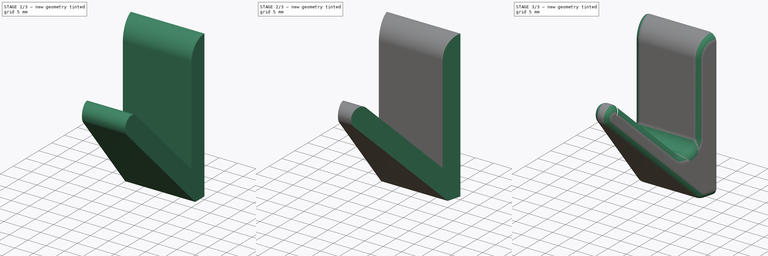
[diagram: build sequence overview — one tinted view per stage of 3, left to right]
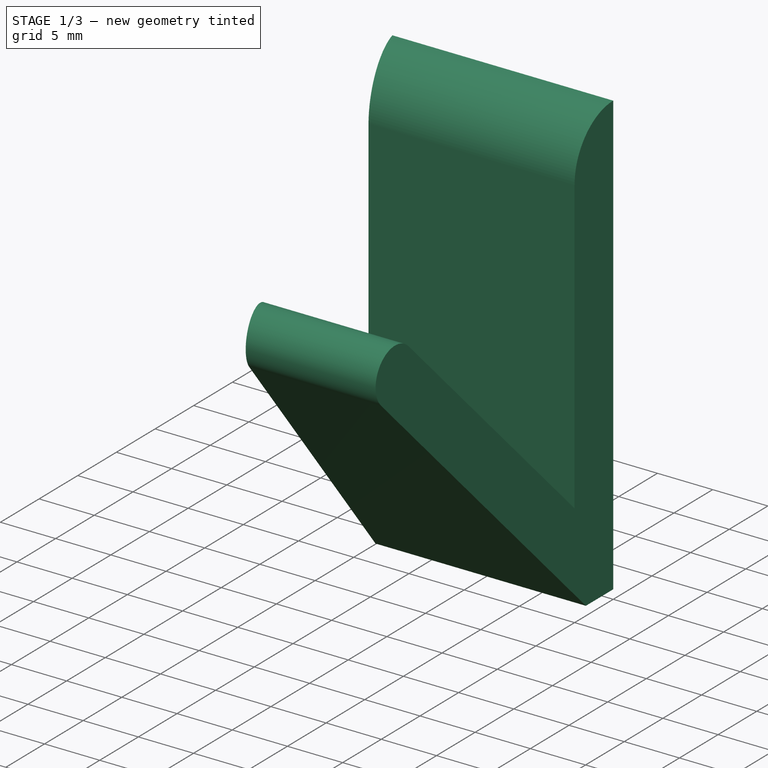
[diagram: stage 1 of 3 — iso view after this stage's code; geometry added in this stage tinted green]
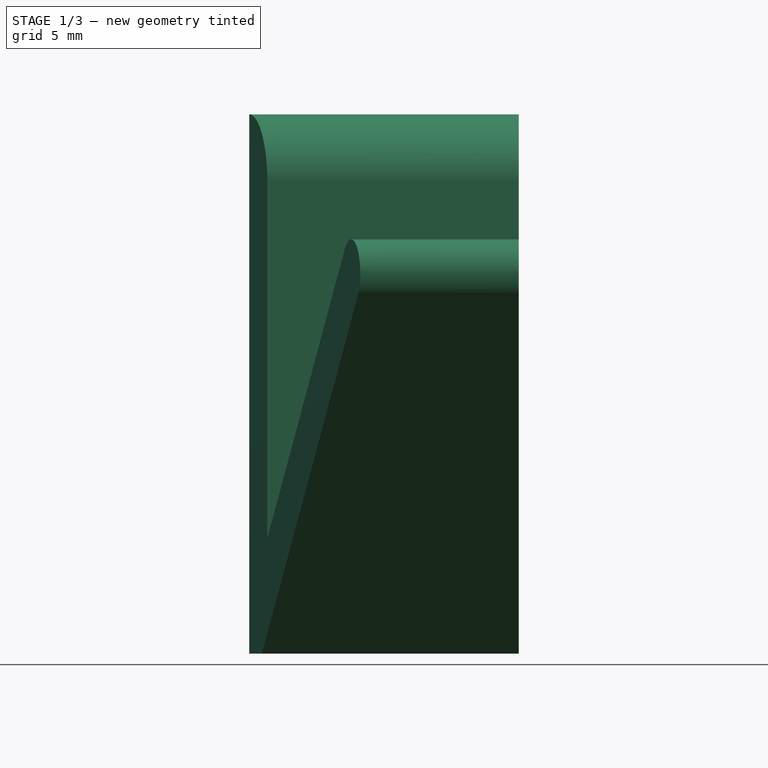
[diagram: stage 1 of 3 — front view after this stage's code; geometry added in this stage tinted green]
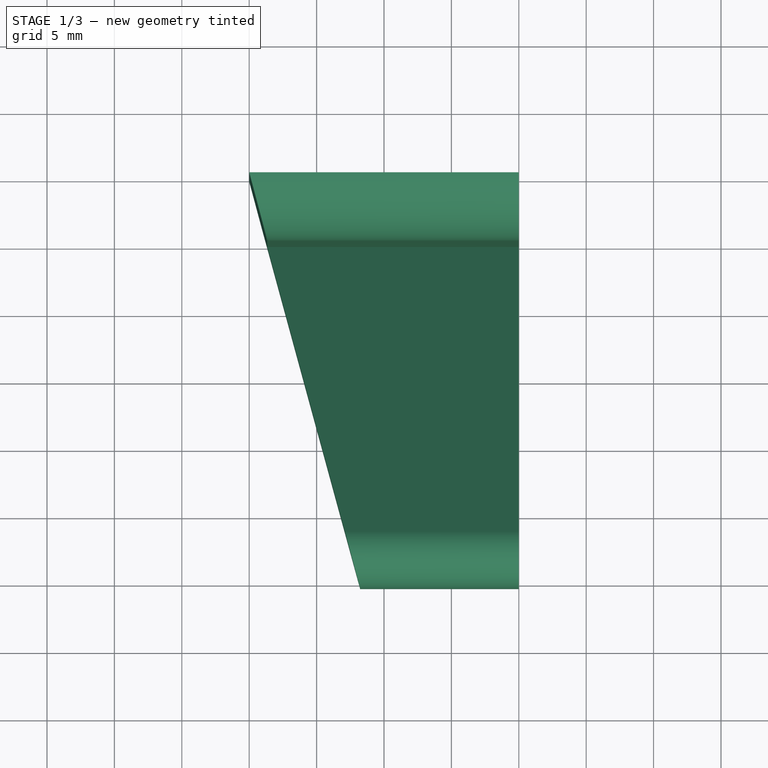
[diagram: stage 1 of 3 — top view after this stage's code; geometry added in this stage tinted green]
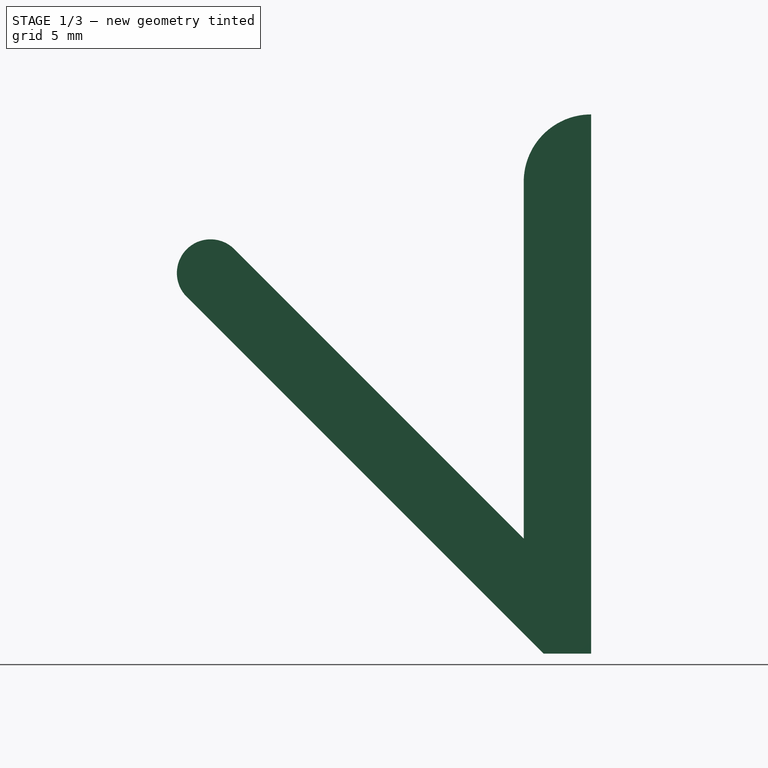
[diagram: stage 1 of 3 — right view after this stage's code; geometry added in this stage tinted green]
FCSTD DOCUMENT  (FreeCAD 1.0R38806 (Git))
Label: minihook
License: All rights reserved
LicenseURL: http://en.wikipedia.org/wiki/All_rights_reserved
objects: Sketcher::SketchObject×3, PartDesign::Pocket×2, PartDesign::Fillet×2, Spreadsheet::Sheet×1, PartDesign::Pad×1, PartDesign::Body×1
note: 22 computed .brp shape members not serialized (recipe doc carries the construction recipe); baked Part::Feature solids carry a one-line shape summary decoded from their .brp

FEATURE [Spreadsheet::Sheet] Spreadsheet
  cells = A1='hook base width; B1(hookBaseWidth)=20; A2='hook base height; B2(hookBaseHeight)=40; A3='hook base thickness; B3(hookBaseThickness)=5; A4='hook depth; B4(hookDepth)=30; A5='hook width angle; B5(hookWidthAngle)=30; A6='hook angle; B6(hookAngle)=45; A7='Hook width; B7(hookWidth)=5; A8='Fillet size; B8(fillet)=3; A9='edge fillet size; B9(edgeFillet)=1.5
FEATURE [Sketcher::SketchObject] Sketch001
  ArcFitTolerance = 0
  AttachmentSupport = -> [XY_Plane]
  FullyConstrained = true
  MakeInternals = false
  MapMode = 5
  expr: Constraints[17] = Spreadsheet.hookWidthAngle / 2
  expr: Constraints[2] = Spreadsheet.hookBaseWidth
  sketch-geometry (8):
    g0: LineSegment [constr] StartX=0 StartY=0 StartZ=0 EndX=20 EndY=0 EndZ=0
    g1: LineSegment [constr] StartX=0 StartY=0 StartZ=0 EndX=0 EndY=-37.3205 EndZ=0
    g2: LineSegment [constr] StartX=20 StartY=0 StartZ=0 EndX=20 EndY=-37.3205 EndZ=0
    g3: LineSegment [constr] StartX=0 StartY=-37.3205 StartZ=0 EndX=20 EndY=-37.3205 EndZ=0
    g4: GeomPoint [constr] X=10 Y=-37.3205 Z=0
    g5: LineSegment StartX=10 StartY=-37.3205 StartZ=0 EndX=0 EndY=-37.3205 EndZ=0
    g6: LineSegment StartX=0 StartY=-37.3205 StartZ=0 EndX=0 EndY=0 EndZ=0
    g7: LineSegment StartX=0 StartY=0 StartZ=0 EndX=10 EndY=-37.3205 EndZ=0
  constraints (18):
    c: Horizontal(g0)
    c: Coincident(g0,g-1)
    c: Distance(g0) = 20
    c: Coincident(g1,g0)
    c: Coincident(g2,g0)
    c: Vertical(g2)
    c: Vertical(g1)
    c: Coincident(g3,g1)
    c: Coincident(g3,g2)
    c: Horizontal(g3)
    c: Symmetric(g1,g2,g4)
    c: Coincident(g5,g4)
    c: Coincident(g5,g1)
    c: Coincident(g5,g6)
    c: Coincident(g6,g0)
    c: Coincident(g6,g7)
    c: Coincident(g7,g5)
    c: Angle(g6,g7) = 0.261799
FEATURE [Sketcher::SketchObject] Sketch002
  ArcFitTolerance = 0
  AttachmentSupport = -> [XY_Plane]
  FullyConstrained = true
  MakeInternals = false
  MapMode = 5
  expr: Constraints[15] = Spreadsheet.hookWidthAngle / 2
  expr: Constraints[16] = Spreadsheet.hookBaseWidth
  sketch-geometry (7):
    g0: LineSegment [constr] StartX=0 StartY=0 StartZ=0 EndX=20 EndY=0 EndZ=0
    g1: LineSegment [constr] StartX=20 StartY=0 StartZ=0 EndX=20 EndY=-37.3205 EndZ=0
    g2: LineSegment [constr] StartX=20 StartY=-37.3205 StartZ=0 EndX=0 EndY=-37.3205 EndZ=0
    g3: LineSegment [constr] StartX=0 StartY=-37.3205 StartZ=0 EndX=0 EndY=0 EndZ=0
    g4: LineSegment StartX=20 StartY=-37.3205 StartZ=0 EndX=10 EndY=-37.3205 EndZ=0
    g5: LineSegment StartX=10 StartY=-37.3205 StartZ=0 EndX=20 EndY=0 EndZ=0
    g6: LineSegment StartX=20 StartY=0 StartZ=0 EndX=20 EndY=-37.3205 EndZ=0
  constraints (17):
    c: Coincident(g0,g-1)
    c: PointOnObject(g0,g-1)
    c: Coincident(g1,g0)
    c: Vertical(g1)
    c: Coincident(g2,g1)
    c: PointOnObject(g2,g-2)
    c: Horizontal(g2)
    c: Coincident(g3,g2)
    c: Coincident(g3,g0)
    c: Coincident(g1,g4)
    c: Coincident(g4,g5)
    c: Coincident(g5,g0)
    c: Coincident(g5,g6)
    c: Coincident(g6,g4)
    c: Symmetric(g4,g2,g4)
    c: Angle(g5,g6) = 0.261799
    c: Distance(g0) = 20
FEATURE [Sketcher::SketchObject] Sketch
  ArcFitTolerance = 0
  AttachmentSupport = -> [YZ_Plane]
  FullyConstrained = true
  MakeInternals = false
  MapMode = 5
  Placement = pos=(0,0,0) rot=(0.57735,0.57735,0.57735;2.0944rad)
  expr: Constraints[10] = Spreadsheet.hookBaseHeight
  expr: Constraints[16] = Spreadsheet.hookBaseThickness
  expr: Constraints[23] = Spreadsheet.hookWidth / 2
  expr: Constraints[9] = Spreadsheet.hookDepth
  sketch-geometry (18):
    g0: LineSegment [constr] StartX=0 StartY=0 StartZ=0 EndX=-30 EndY=0 EndZ=0
    g1: LineSegment [constr] StartX=-30 StartY=0 StartZ=0 EndX=-30 EndY=40 EndZ=0
    g2: LineSegment [constr] StartX=-30 StartY=40 StartZ=0 EndX=0 EndY=40 EndZ=0
    g3: LineSegment [constr] StartX=0 StartY=40 StartZ=0 EndX=0 EndY=0 EndZ=0
    g4: LineSegment [constr] StartX=-5 StartY=40 StartZ=0 EndX=-5 EndY=0 EndZ=0
    g5: LineSegment [constr] StartX=-30 StartY=30 StartZ=0 EndX=0 EndY=0 EndZ=0
    g6: LineSegment [constr] StartX=-30 StartY=33.5355 StartZ=0 EndX=0 EndY=3.53553 EndZ=0
    g7: LineSegment [constr] StartX=-30 StartY=26.4645 StartZ=0 EndX=-3.53553 EndY=0 EndZ=0
    g8: LineSegment StartX=0 StartY=0 StartZ=0 EndX=0 EndY=40 EndZ=0
    g9: ArcOfCircle CenterX=0 CenterY=35 CenterZ=0 NormalX=0 NormalY=0 NormalZ=1 AngleXU=0 Radius=5 StartAngle=1.5708 EndAngle=3.14159
    g10: LineSegment StartX=-5 StartY=35 StartZ=0 EndX=-5 EndY=8.53553 EndZ=0
    g11: ArcOfCircle CenterX=-28.2322 CenterY=28.2322 CenterZ=0 NormalX=0 NormalY=0 NormalZ=1 AngleXU=0 Radius=2.5 StartAngle=0.785398 EndAngle=3.92699
    g12: LineSegment StartX=-26.4645 StartY=30 StartZ=0 EndX=-5 EndY=8.53553 EndZ=0
    g13: LineSegment [constr] StartX=-30 StartY=26.4645 StartZ=0 EndX=-26.4645 EndY=30 EndZ=0
    g14: LineSegment [constr] StartX=0 StartY=3.53553 StartZ=0 EndX=-3.53553 EndY=0 EndZ=0
    g15: LineSegment StartX=-30 StartY=26.4645 StartZ=0 EndX=-3.53553 EndY=0 EndZ=0
    g16: LineSegment StartX=-3.53553 StartY=0 StartZ=0 EndX=0 EndY=0 EndZ=0
    g17: GeomPoint X=-28.2322 Y=28.2322 Z=0
  constraints (49):
    c: Coincident(g0,g1)
    c: Coincident(g1,g2)
    c: Coincident(g2,g3)
    c: Coincident(g3,g0)
    c: Horizontal(g0)
    c: Horizontal(g2)
    c: Vertical(g1)
    c: Vertical(g3)
    c: Coincident(g0,g-1)
    c: Distance(g2) = 30
    c: Distance(g3) = 40
    c: PointOnObject(g4,g2)
    c: PointOnObject(g4,g0)
    c: Vertical(g4)
    c: PointOnObject(g5,g1)
    c: Coincident(g5,g0)
    c: Distance(g4,g2) = 5
    c: PointOnObject(g6,g1)
    c: PointOnObject(g6,g3)
    c: PointOnObject(g7,g1)
    c: PointOnObject(g7,g0)
    c: Parallel(g6,g5)
    c: Parallel(g7,g5)
    c: Distance(g6,g5) = 2.5
    c: Symmetric(g7,g6,g5)
    c: Coincident(g8,g0)
    c: Coincident(g8,g2)
    c: PointOnObject(g9,g8)
    c: Coincident(g9,g8)
    c: PointOnObject(g9,g4)
    c: Horizontal(g9,g9)
    c: Coincident(g10,g9)
    c: PointOnObject(g10,g4)
    c: PointOnObject(g10,g6)
    c: Coincident(g12,g11)
    c: Coincident(g12,g10)
    c: Coincident(g13,g11)
    c: Coincident(g13,g11)
    c: Coincident(g14,g6)
    c: Coincident(g14,g7)
    c: Parallel(g13,g14)
    c: PointOnObject(g11,g6)
    c: Coincident(g11,g7)
    c: Coincident(g15,g11)
    c: Coincident(g15,g7)
    c: Coincident(g16,g15)
    c: Coincident(g16,g8)
    c: PointOnObject(g17,g13)
    c: Coincident(g11,g17)
FEATURE [PartDesign::Pad] Pad  label="main_hook_body"
  Direction = (1,0,0)
  Length = 20
  Length2 = 10
  Placement = pos=(0,0,0) rot=(1,1,1;2.0944rad)
  Profile = -> Sketch
  ReferenceAxis = -> Sketch [N_Axis]
  Suppressed = false
  Type = 0
  expr: Length = Spreadsheet.hookBaseWidth
FEATURE [PartDesign::Pocket] Pocket  label="left_slice_off"
  BaseFeature = -> Pad
  Direction = (0,0,-1)
  Length = 5
  Length2 = 5
  Placement = pos=(0,0,0) rot=(1,1,1;2.0944rad)
  Profile = -> Sketch001
  ReferenceAxis = -> Sketch001 [N_Axis]
  Reversed = true
  Suppressed = false
  Type = 1
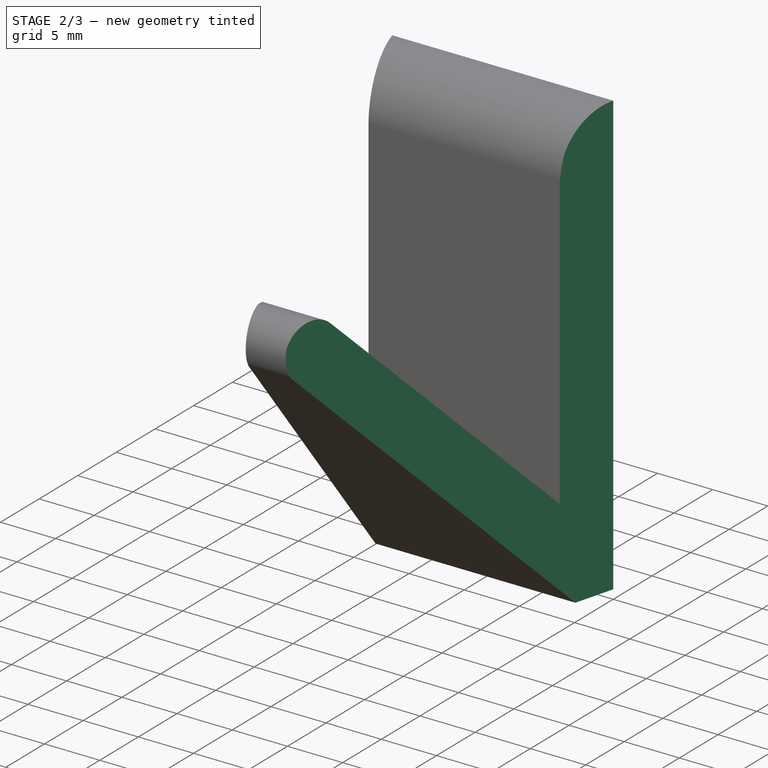
[diagram: stage 2 of 3 — iso view after this stage's code; geometry added in this stage tinted green]
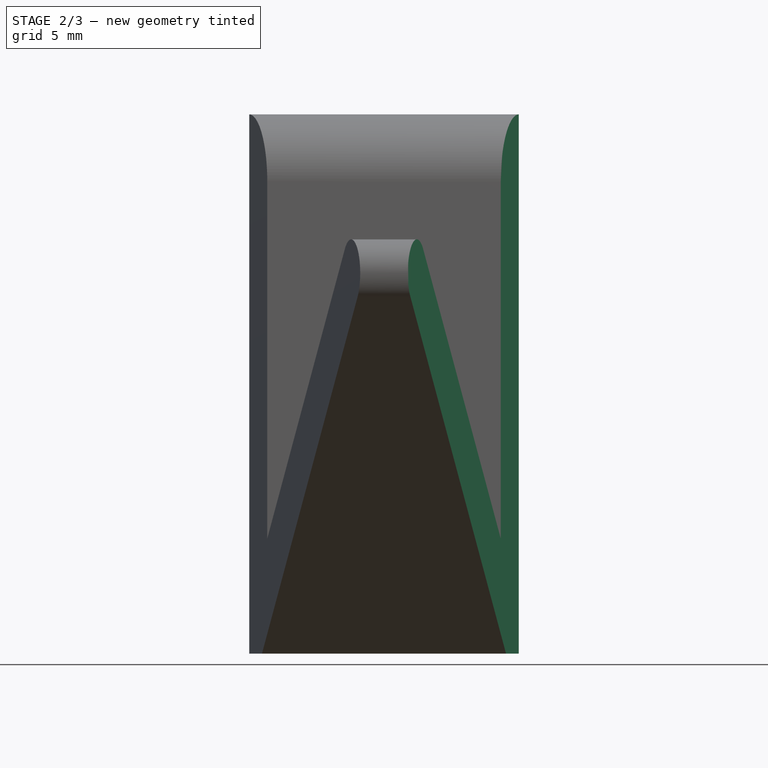
[diagram: stage 2 of 3 — front view after this stage's code; geometry added in this stage tinted green]
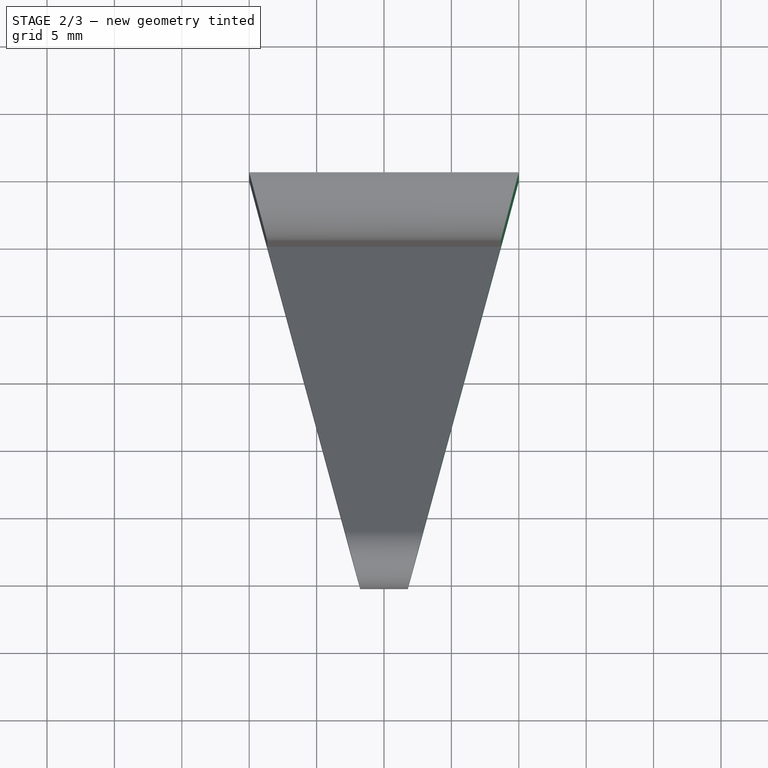
[diagram: stage 2 of 3 — top view after this stage's code; geometry added in this stage tinted green]
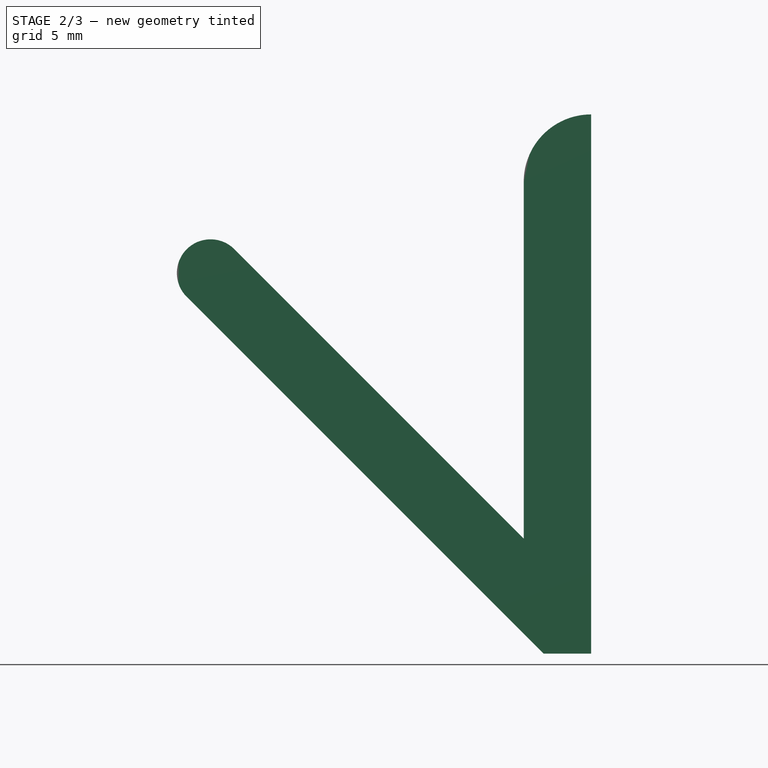
[diagram: stage 2 of 3 — right view after this stage's code; geometry added in this stage tinted green]
FEATURE [PartDesign::Pocket] Pocket001  label="right_slice_off"
  BaseFeature = -> Pocket
  Direction = (0,0,-1)
  Length = 5
  Length2 = 5
  Placement = pos=(0,0,0) rot=(1,1,1;2.0944rad)
  Profile = -> Sketch002
  ReferenceAxis = -> Sketch002 [N_Axis]
  Reversed = true
  Suppressed = false
  Type = 1
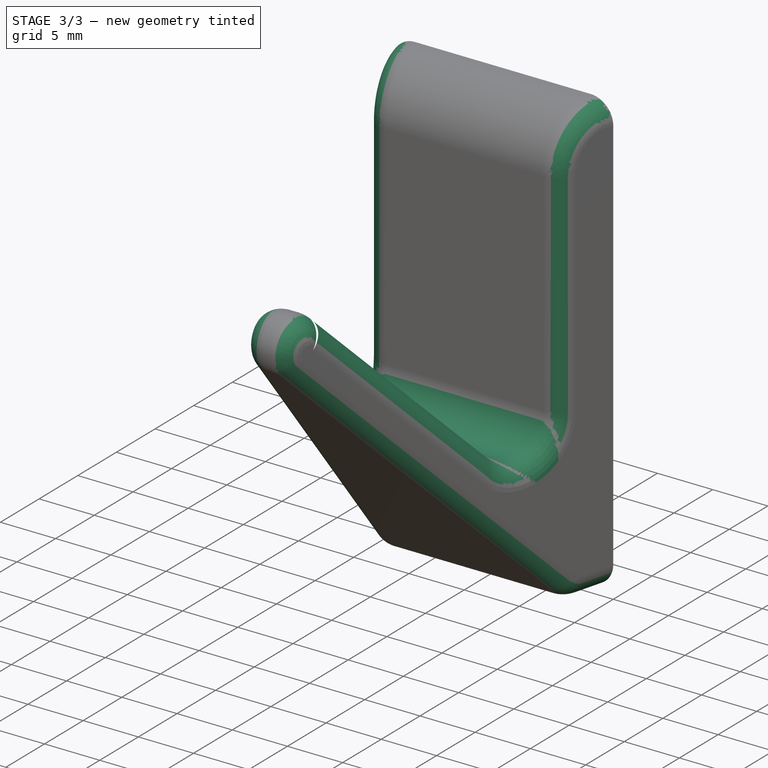
[diagram: stage 3 of 3 — iso view after this stage's code; geometry added in this stage tinted green]
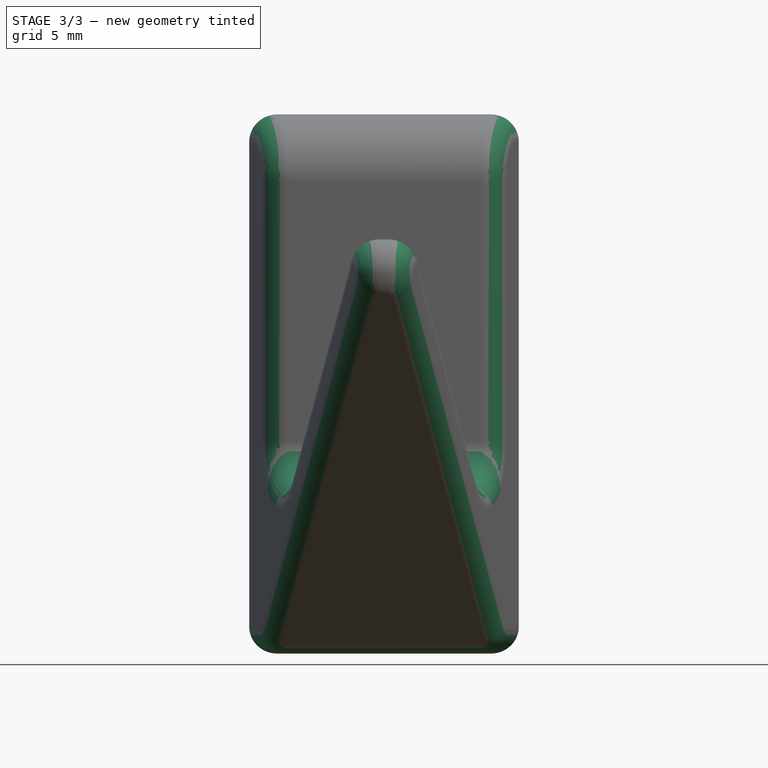
[diagram: stage 3 of 3 — front view after this stage's code; geometry added in this stage tinted green]
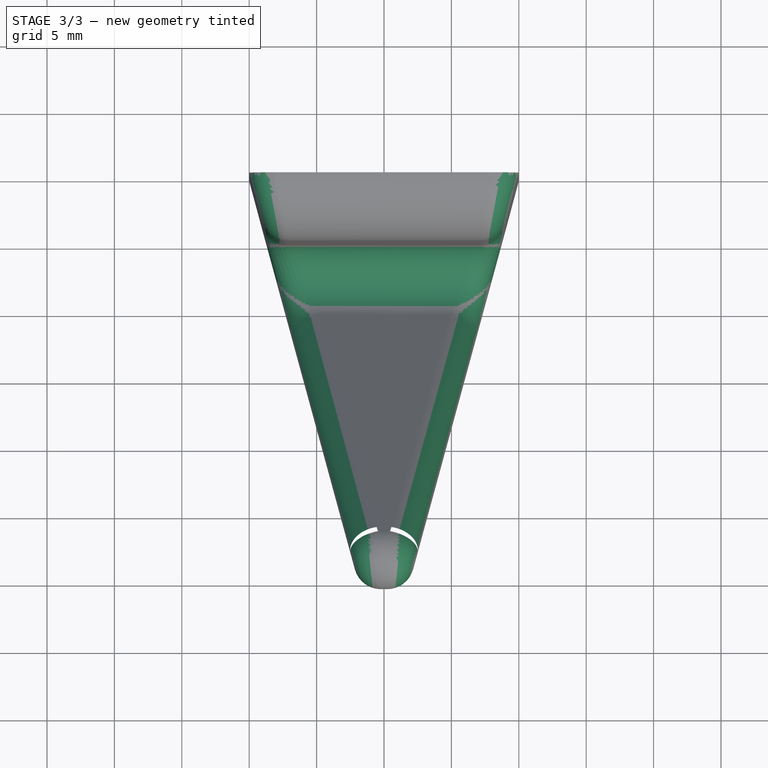
[diagram: stage 3 of 3 — top view after this stage's code; geometry added in this stage tinted green]
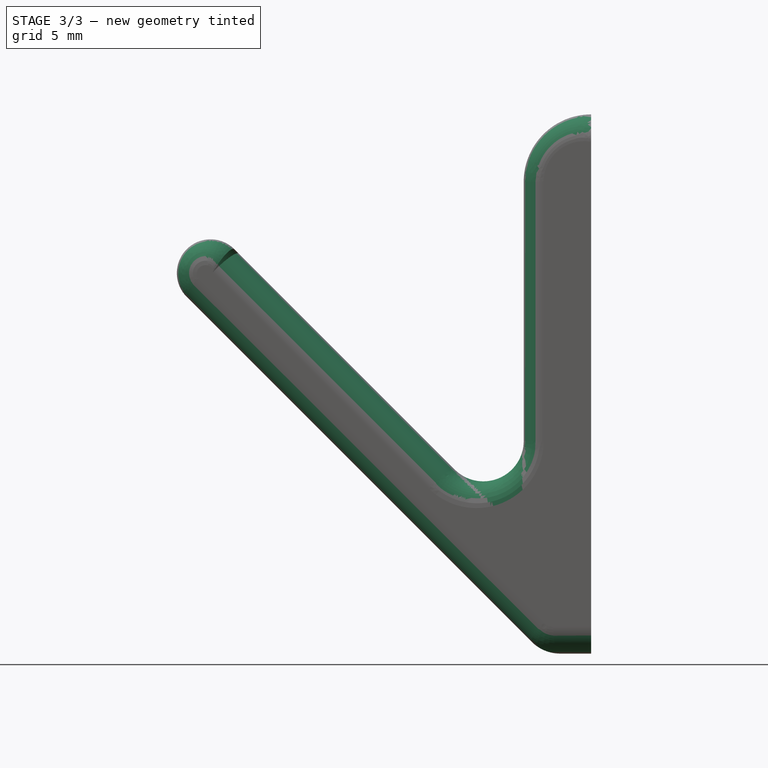
[diagram: stage 3 of 3 — right view after this stage's code; geometry added in this stage tinted green]
FEATURE [PartDesign::Fillet] Fillet
  Base = -> Pocket001 [Edge20,Edge6]
  BaseFeature = -> Pocket001
  Placement = pos=(0,0,0) rot=(1,1,1;2.0944rad)
  Radius = 3
  SupportTransform = false
  Suppressed = false
  UseAllEdges = false
  expr: Radius = Spreadsheet.fillet
FEATURE [PartDesign::Fillet] Fillet001
  Base = -> Fillet [Edge20,Edge10]
  BaseFeature = -> Fillet
  Placement = pos=(0,0,0) rot=(1,1,1;2.0944rad)
  Radius = 2
  SupportTransform = false
  Suppressed = false
  UseAllEdges = false
FEATURE [PartDesign::Body] Body
  AllowCompound = false
  Group = -> [Pad,Sketch002,Sketch001,Pocket,Pocket001,Sketch,Fillet,Fillet001]
  Origin = -> Origin
  Tip = -> Fillet001
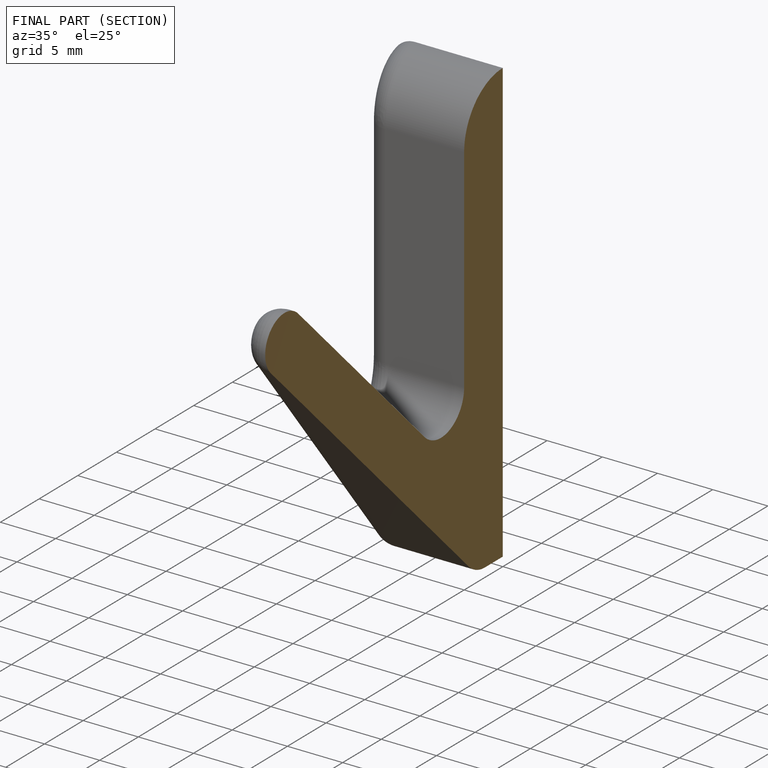
[diagram: finished part — half-section view (interior)]
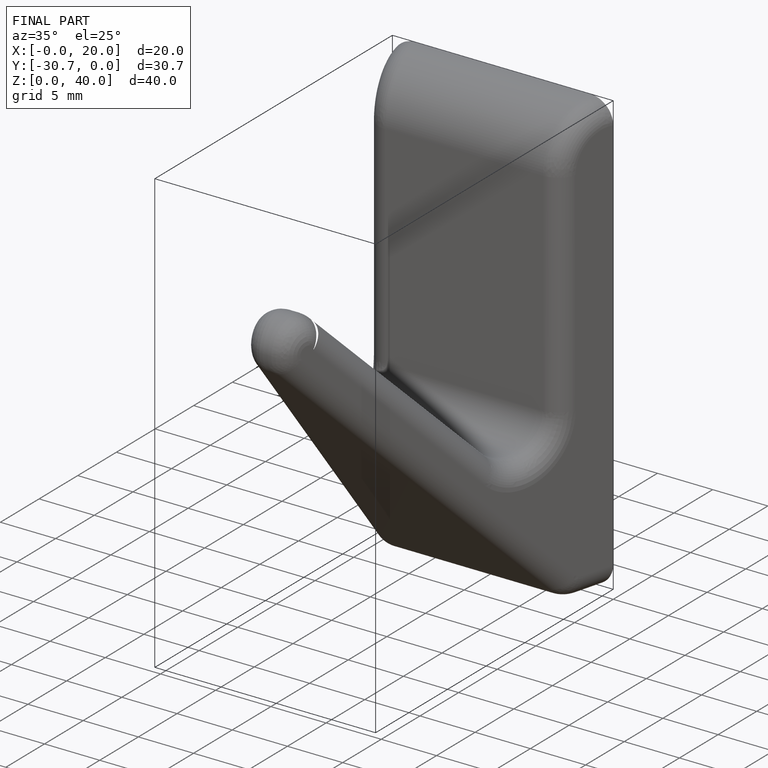
[diagram: finished part — iso view with bounding-box wireframe]
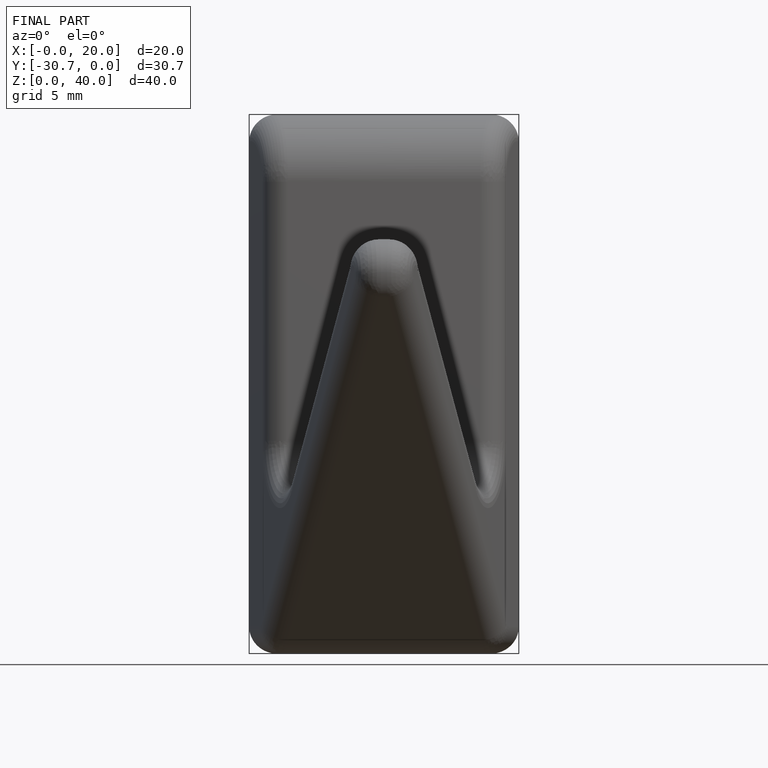
[diagram: finished part — front view with bounding-box wireframe]
